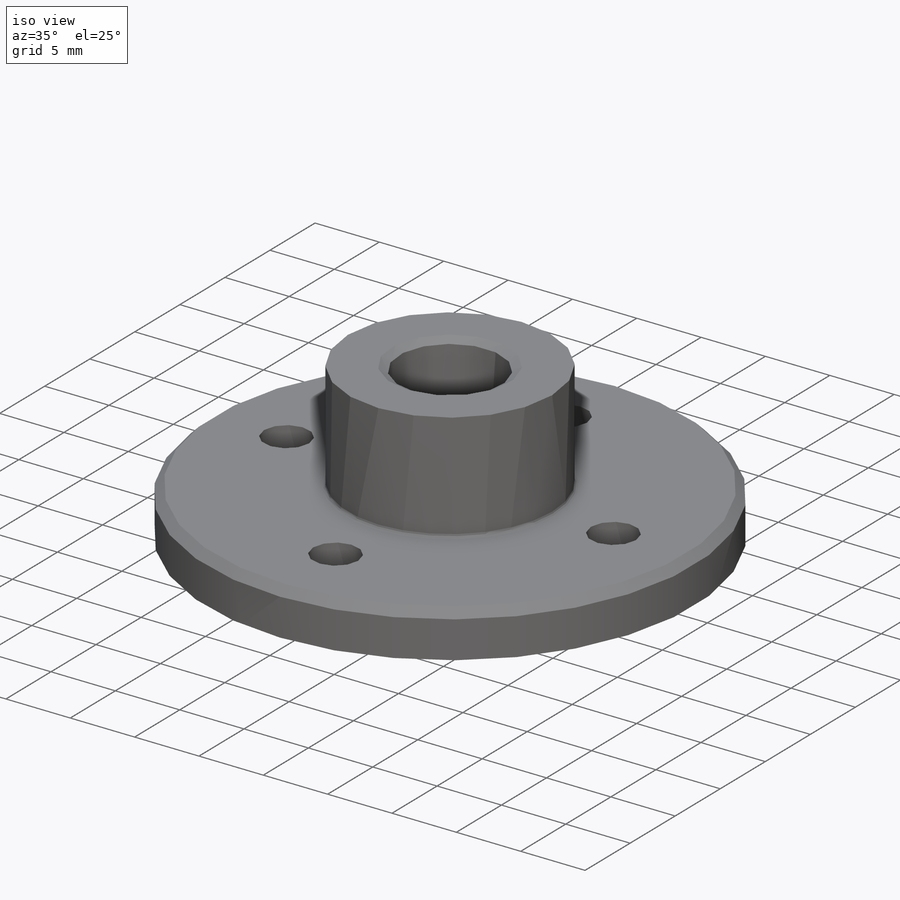
[diagram: iso view]
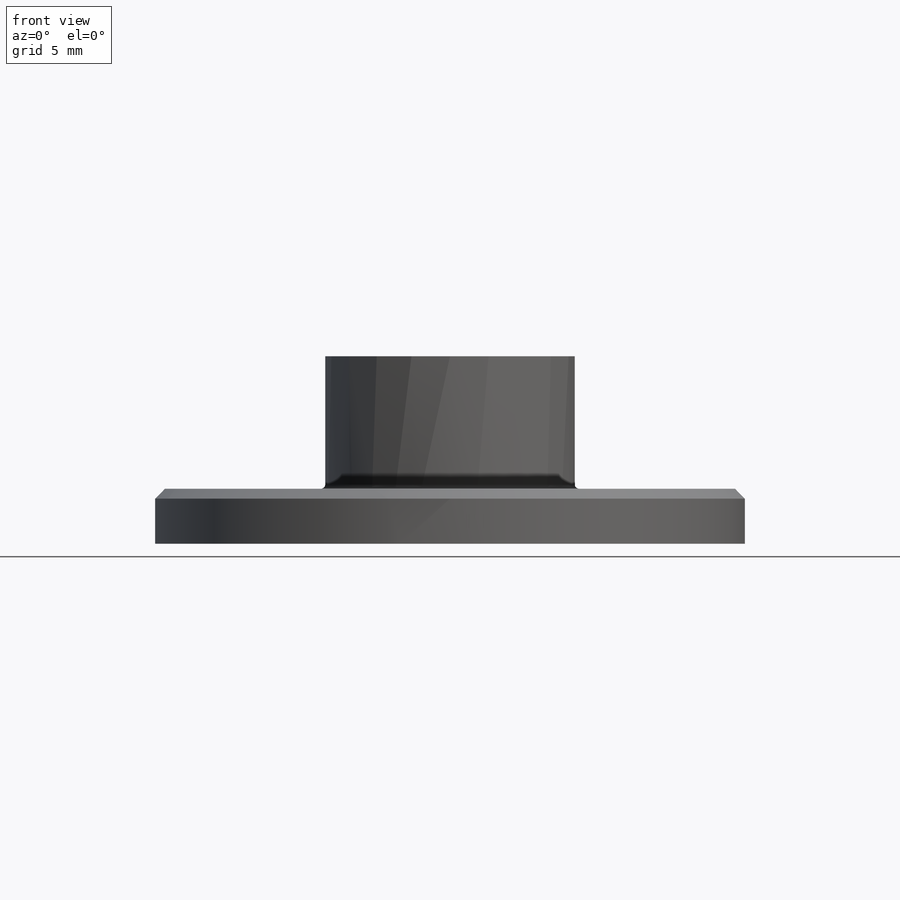
[diagram: front view]
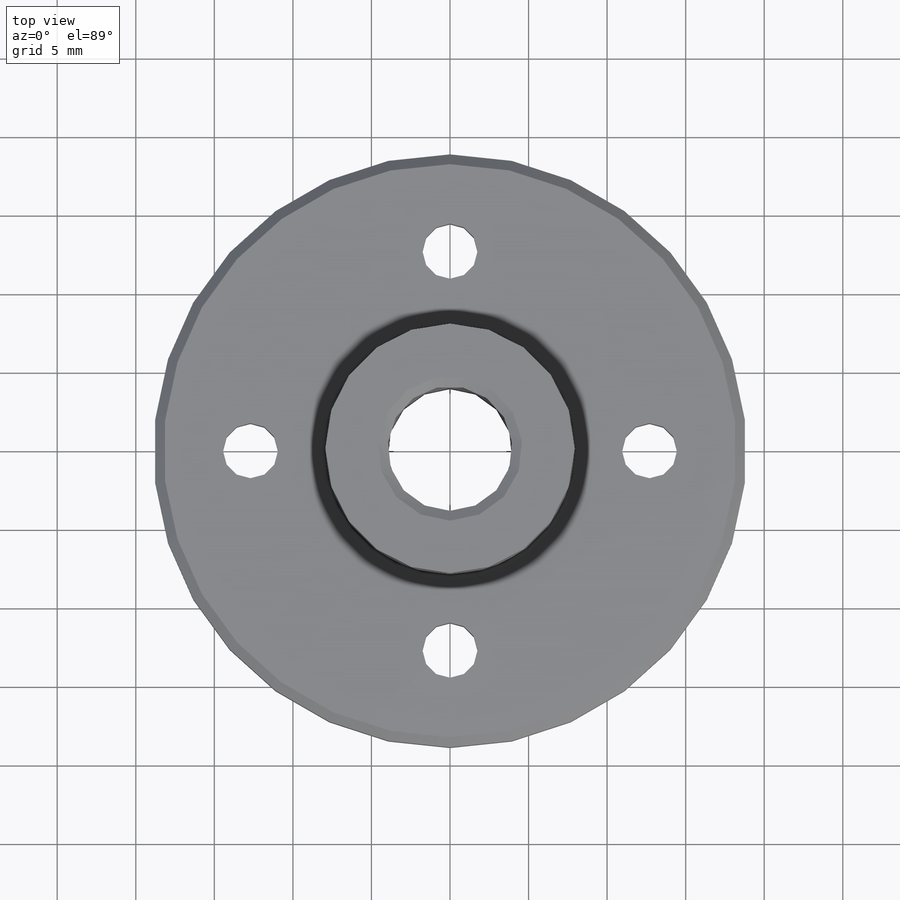
[diagram: top view]
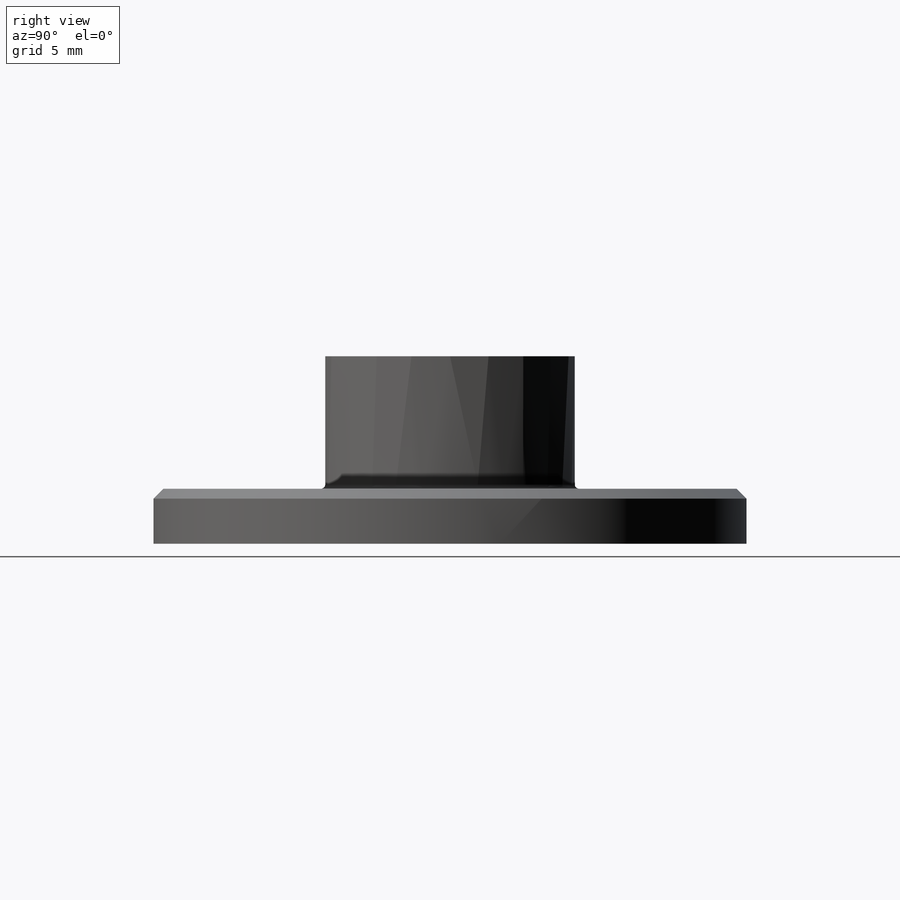
[diagram: right view]
SOLIDWORKS PART (.sldprt)
format: sldprt  version: not decoded by parser v0  size: 273,920 bytes
history: native  units: mm
features: sketch x8, hole x3, revolve x2, material x1, fillet x1, pattern_circular x1, chamfer x1 (+14 scaffold rows collapsed)
feature tree (31):
  scaffold x14  (default folders/planes/origin — collapsed)
  material  "304 SSTL"
  sketch  "Sketch1"  dims[c1.D1=25.4mm c1.D2=12.7mm c1.D3=31.75mm c2.D1=15.875mm c2.D2=25.4mm c2.D4=10.922mm c3.D2=~1.26558mm c4.D2=~234.378979deg c5.D2=~1.556895mm c6.D2=45.0deg c6.D3=0.889mm c6.D5=0.889mm c6.D1=15.875mm c7.D2=2.032mm c7.D3=19.05mm c7.D4=5.461mm c7.D5=11.938mm c8.D2=8.4328mm]
  revolve  "Base-Revolve"  Angle=360deg
  hole  "5/16-24 Tapped Hole1"  Diameter=7.9375mm Depth=8.4328mm
  sketch  "Sketch3"
  sketch  "Sketch2"  dims[hole-wizard template sketch: 54 standard entries collapsed; hole parameters kept: c17.Thread Major Dia.=7.9375mm c17.Thru Tap Drill Depth=8.4328mm c17.Near C'Sink Dia.=9.2075mm c17.D4=~3.666174mm c17.Near C'Sink Angle=120.0deg]
  sketch  "Sketch4"  dims[D1=3.5052mm]
  revolve  "Revolve1"  Angle=360deg
  hole  "5/16-18 Tapped Hole2"  Diameter=7.9375mm Depth=3.5052mm
  sketch  "Sketch6"
  sketch  "Sketch5"  dims[hole-wizard template sketch: 54 standard entries collapsed; hole parameters kept: c17.Thread Major Dia.=7.9375mm c17.Thru Tap Drill Depth=3.5052mm c17.Far C'Sink Dia.=9.2075mm c17.D4=~2.963249mm c17.Far C'Sink Angle=120.0deg]
  fillet  "Fillet1"  Radius=0.254mm
  hole  "#6-32 Tapped Hole1"  Diameter=3.5052mm Depth=3.5062mm
  sketch  "Sketch9"  dims[D1=12.7mm]
  sketch  "Sketch8"  dims[hole-wizard template sketch: 59 standard entries collapsed; hole parameters kept: c18.Thread Major Dia.=3.5052mm c18.Thru Tap Drill Depth=3.5062mm]
  pattern_circular  "CirPattern1"  Count=4 Angle=90deg
  chamfer  "Chamfer1"  Distance=0.635mm Angle=45deg
decode coverage: 14 of 16 modeling features carry decoded parameters
note: ~ marks probable driven/reference dimensions
note: suppression state not decoded; provenance and decode notes live in map.json
